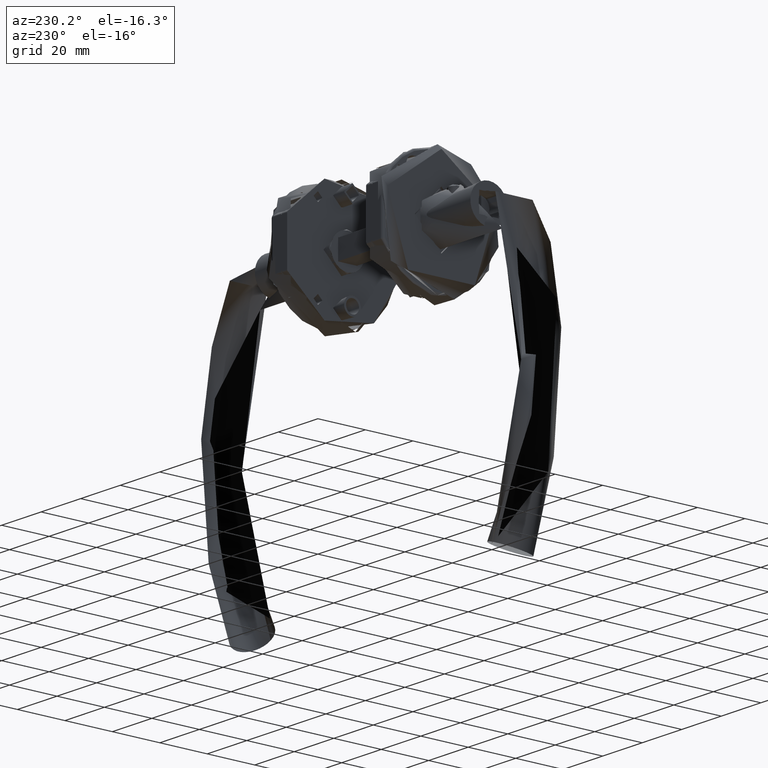
[diagram: clean part render]
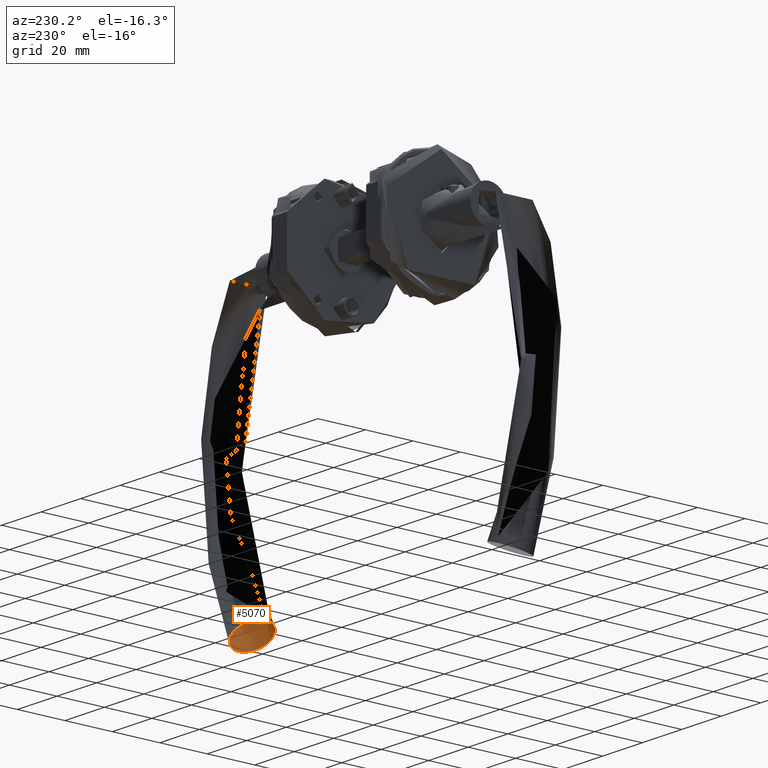
[diagram: same view with one face highlighted and labeled with its STEP entity id]
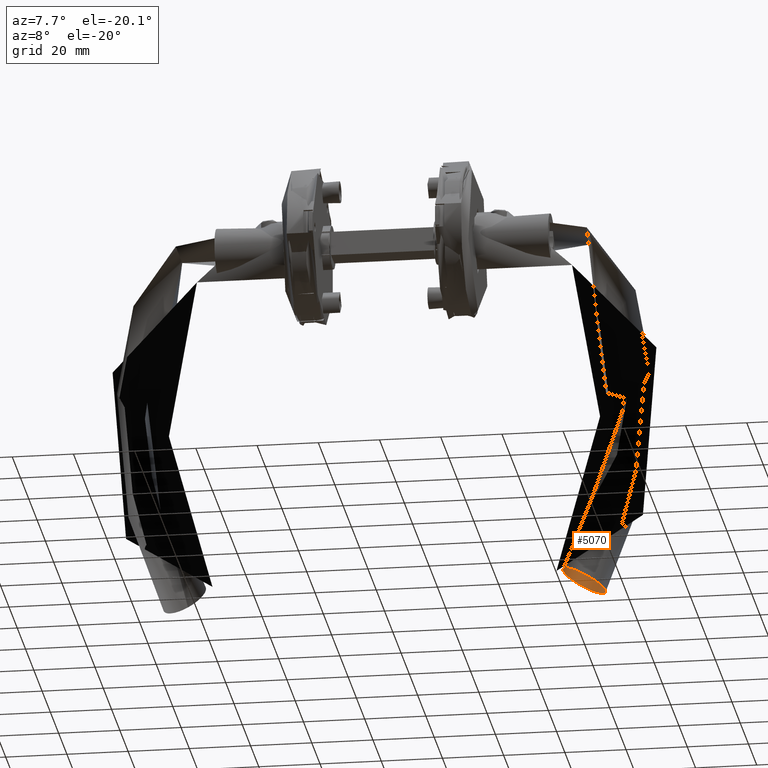
[diagram: same view with one face highlighted and labeled with its STEP entity id]
A machine part, auxiliary view. The second image highlights one B-rep face of the part: STEP entity #5070.
A second angle (auxiliary view) of the same face is appended — the face is thin or edge-on in the first view.
In plain terms, the highlighted planar face has unit normal (0.4737, 0, 0.8807).
Its self-contained STEP definition (entity closure, byte-faithful):
#461 = CARTESIAN_POINT ( 'NONE',  ( -130.0246887700677700, 7.297930048565334900, 37.86594364011880000 ) ) ;
#862 = CARTESIAN_POINT ( 'NONE',  ( -132.0623440172005600, 3.084938183703064500, 41.65469499233080300 ) ) ;
#1300 = DIRECTION ( 'NONE',  ( 0.8807079098085771600, -1.093418151136689100E-015, 0.4736597698777121300 ) ) ;
#1495 = CARTESIAN_POINT ( 'NONE',  ( -125.5883039851745100, 4.510235785702292300, 29.61707088485236400 ) ) ;
#1585 = CARTESIAN_POINT ( 'NONE',  ( -125.0942071126809300, 2.454644532618516000, 28.69836287650899800 ) ) ;
#1739 = CARTESIAN_POINT ( 'NONE',  ( -126.8040665639898200, -6.850664302222550200, 31.87762115258648500 ) ) ;
#1825 = CARTESIAN_POINT ( 'NONE',  ( -127.1698994814527700, 7.234890339400904800, 32.55783924280164100 ) ) ;
#1841 = CARTESIAN_POINT ( 'NONE',  ( -132.3443841228504400, 0.5933176723340914900, 42.17911139356611700 ) ) ;
#2183 = CARTESIAN_POINT ( 'NONE',  ( -132.3331774138516700, 0.8485868159676432900, 42.15827399531990900 ) ) ;
#2503 = CARTESIAN_POINT ( 'NONE',  ( -131.5346529922304100, -4.921843900484168100, 40.67352308544475600 ) ) ;
#3462 = CARTESIAN_POINT ( 'NONE',  ( -130.0955699540232600, -7.237892643067547200, 37.99773785895689600 ) ) ;
#3543 = CARTESIAN_POINT ( 'NONE',  ( -124.9783774206453400, 1.449396154831457600, 28.48299283148122600 ) ) ;
#4402 = CARTESIAN_POINT ( 'NONE',  ( -131.8806099050049500, -3.865394331767283200, 41.31678436476381900 ) ) ;
#4465 = CARTESIAN_POINT ( 'NONE',  ( -133.2826195758731600, 1.165569157455939700E-014, 43.92363655126159500 ) ) ;
#4883 = DIRECTION ( 'NONE',  ( 0.4736597698777121300, -5.258679823569121700E-017, -0.8807079098085771600 ) ) ;
#5070 = ADVANCED_FACE ( 'NONE', ( #11011 ), #12618, .T. ) ;
#5109 = ORIENTED_EDGE ( 'NONE', *, *, #16570, .T. ) ;
#5420 = CARTESIAN_POINT ( 'NONE',  ( -124.9150220558793100, -0.07890433624342078900, 28.36519188146026600 ) ) ;
#5504 = CARTESIAN_POINT ( 'NONE',  ( -125.2071634684188700, -3.081014128194858900, 28.90839033142072300 ) ) ;
#5582 = CARTESIAN_POINT ( 'NONE',  ( -125.9710164160086700, 5.503079781527670600, 30.32867420532158000 ) ) ;
#5659 = CARTESIAN_POINT ( 'NONE',  ( -126.0326988003370700, -5.610909122503995800, 30.44336446873153100 ) ) ;
#6016 = CARTESIAN_POINT ( 'NONE',  ( -132.3540940223065800, -0.1818208222135386200, 42.19716567175954200 ) ) ;
#6819 = CARTESIAN_POINT ( 'NONE',  ( -130.4623218430293700, 6.854276195314238200, 38.67966465562878400 ) ) ;
#7366 = CARTESIAN_POINT ( 'NONE',  ( -125.3117012130159700, -3.554901933649961400, 29.10276448855893200 ) ) ;
#7447 = CARTESIAN_POINT ( 'NONE',  ( -125.0029413110930700, 1.703408910066885200, 28.52866614804465700 ) ) ;
#7530 = CARTESIAN_POINT ( 'NONE',  ( -125.3345864909430700, 3.627700654675611900, 29.14531664639517000 ) ) ;
#7607 = CARTESIAN_POINT ( 'NONE',  ( -127.9454349206428100, -7.717706679561534800, 33.99984516998397100 ) ) ;
#7686 = CARTESIAN_POINT ( 'NONE',  ( -128.9161136623360200, -7.844504337756713900, 35.80469434666842000 ) ) ;
#7908 = B_SPLINE_CURVE_WITH_KNOTS ( 'NONE', 3,
 ( #25127, #13838, #15706, #2183, #1841, #21656, #6016, #7957, #9993, #13507, #15448, #4402, #21974, #2503, #15947, #10322, #12287, #10408, #11957, #13920, #18840, #3462, #9317, #17053, #7686, #9405, #25107, #21304, #7607, #25024, #19254, #13404, #1739, #22919, #9639, #11280, #5659, #11193, #24778, #17214, #7366, #5504, #13154, #15343, #21220, #13316, #5420, #15430, #19006, #20972, #3543, #7447, #1585, #23085, #7530, #9559, #22998, #1495, #24949, #5582, #19175, #9484, #23173, #11531, #13486, #1825, #15683, #23592, #13897, #13563, #8187, #22034, #16089, #8350, #13977, #461, #6819, #16428, #20251, #24166, #10559, #8605, #20422, #18376, #12527, #862, #16685 ),
 .UNSPECIFIED., .T., .F.,
 ( 4, 2, 2, 2, 2, 2, 2, 2, 1, 2, 2, 2, 2, 2, 2, 2, 2, 2, 2, 2, 2, 2, 2, 2, 2, 2, 2, 2, 2, 2, 2, 2, 2, 2, 2, 2, 2, 2, 2, 2, 2, 2, 2, 4 ),
 ( 0.0000000000000000000, 0.001533722147472849200, 0.002300583221209272400, 0.003067444294945695800, 0.004601166442418542200, 0.006134888589891389000, 0.007668610737364235000, 0.008435471811100657100, 0.009202332884837079200, 0.009969193958573501300, 0.01073605503230992300, 0.01226977717978276600, 0.01380349932725561200, 0.01533722147472845400, 0.01610408254846485600, 0.01687094362220126200, 0.01840466576967410300, 0.01993838791714696400, 0.02070524899088338800, 0.02147211006461981200, 0.02300583221209267000, 0.02453955435956552100, 0.02607327650703837600, 0.02684013758077480000, 0.02760699865451122700, 0.02837385972824765100, 0.02914072080198407500, 0.03067444294945694000, 0.03144130402319336700, 0.03220816509692980100, 0.03374188724440263500, 0.03450874831813906300, 0.03527560939187548300, 0.03680933153934835100, 0.03834305368682121300, 0.03910991476055765400, 0.03987677583429409500, 0.04141049798176697800, 0.04294422012923986000, 0.04447794227671274200, 0.04524480335044919800, 0.04601166442418565300, 0.04754538657165857000, 0.04907910871913148000 ),
 .UNSPECIFIED. ) ;
#7957 = CARTESIAN_POINT ( 'NONE',  ( -132.3337481934644600, -0.9524228112968967700, 42.15933528477627600 ) ) ;
#8187 = CARTESIAN_POINT ( 'NONE',  ( -128.5934556549650000, 7.853762937999549700, 35.20475431095886200 ) ) ;
#8350 = CARTESIAN_POINT ( 'NONE',  ( -129.3216601084182900, 7.731370993902571000, 36.55875450877923800 ) ) ;
#8605 = CARTESIAN_POINT ( 'NONE',  ( -131.3222383994294900, 5.429374542300268800, 40.27856614813340000 ) ) ;
#9317 = CARTESIAN_POINT ( 'NONE',  ( -129.6379468857782600, -7.576890738268546400, 37.14684808206433800 ) ) ;
#9405 = CARTESIAN_POINT ( 'NONE',  ( -128.6741680609841600, -7.866414288344088800, 35.35482839138774800 ) ) ;
#9484 = CARTESIAN_POINT ( 'NONE',  ( -126.3384967355477500, 6.181445234801282500, 31.01195542255640100 ) ) ;
#9559 = CARTESIAN_POINT ( 'NONE',  ( -125.3924441098051800, 3.853557012867336400, 29.25289526255616200 ) ) ;
#9639 = CARTESIAN_POINT ( 'NONE',  ( -126.3058535640759500, -6.122650372613212400, 30.95125974784464200 ) ) ;
#9993 = CARTESIAN_POINT ( 'NONE',  ( -132.2966415642993400, -1.457686981235059700, 42.09034039880482700 ) ) ;
#10322 = CARTESIAN_POINT ( 'NONE',  ( -131.2912839408839400, -5.500164663239085700, 40.22101041252192700 ) ) ;
#10408 = CARTESIAN_POINT ( 'NONE',  ( -130.9303852351690400, -6.182029180731565700, 39.54996683868215300 ) ) ;
#10559 = CARTESIAN_POINT ( 'NONE',  ( -131.2369561619117100, 5.611536566224966500, 40.11999506837423000 ) ) ;
#11011 = FACE_OUTER_BOUND ( 'NONE', #23056, .T. ) ;
#11193 = CARTESIAN_POINT ( 'NONE',  ( -125.9460299446684400, -5.425675072246847600, 30.28221515528833800 ) ) ;
#11280 = CARTESIAN_POINT ( 'NONE',  ( -126.2124606859655400, -5.958962325447514800, 30.77760800095293100 ) ) ;
#11531 = CARTESIAN_POINT ( 'NONE',  ( -126.6372135707210600, 6.627570850784801200, 31.56738000420913100 ) ) ;
#11957 = CARTESIAN_POINT ( 'NONE',  ( -130.7341350732804400, -6.485470164129237600, 39.18506553004630200 ) ) ;
#12287 = CARTESIAN_POINT ( 'NONE',  ( -131.1186814394361900, -5.859715491846535500, 39.90007881151779400 ) ) ;
#12385 = CARTESIAN_POINT ( 'NONE',  ( -132.1436259214283700, 2.595551212081290700, 41.80582797961454800 ) ) ;
#12527 = CARTESIAN_POINT ( 'NONE',  ( -131.9591583976590000, 3.552412542679912500, 41.46283493351251100 ) ) ;
#12618 = PLANE ( 'NONE',  #16680 ) ;
#13154 = CARTESIAN_POINT ( 'NONE',  ( -125.0464334342264400, -2.114291784440089900, 28.60953401838917600 ) ) ;
#13170 = VERTEX_POINT ( 'NONE', #12385 ) ;
#13316 = CARTESIAN_POINT ( 'NONE',  ( -124.9255517483180000, -0.5925782493897516800, 28.38477045664933500 ) ) ;
#13404 = CARTESIAN_POINT ( 'NONE',  ( -127.2464527384831100, -7.299573483247026900, 32.70017993389656400 ) ) ;
#13486 = CARTESIAN_POINT ( 'NONE',  ( -126.9501298082889900, 7.018152609542061900, 32.14920650301600300 ) ) ;
#13507 = CARTESIAN_POINT ( 'NONE',  ( -132.1757548262172600, -2.451422578934789900, 41.86556744321426000 ) ) ;
#13563 = CARTESIAN_POINT ( 'NONE',  ( -128.3499399045704200, 7.831388953653625000, 34.75196887049205700 ) ) ;
#13838 = CARTESIAN_POINT ( 'NONE',  ( -132.2249078256561200, 2.106164240459534700, 41.95696096689827200 ) ) ;
#13897 = CARTESIAN_POINT ( 'NONE',  ( -128.2291265750270400, 7.807658593292290000, 34.52733240840295500 ) ) ;
#13920 = CARTESIAN_POINT ( 'NONE',  ( -130.6314663308515400, -6.628432567579285900, 38.99416653609009100 ) ) ;
#13977 = CARTESIAN_POINT ( 'NONE',  ( -129.7920091621903400, 7.476858603986665100, 37.43330657836915500 ) ) ;
#15343 = CARTESIAN_POINT ( 'NONE',  ( -124.9887454837470100, -1.617471576484839300, 28.50227087822228400 ) ) ;
#15430 = CARTESIAN_POINT ( 'NONE',  ( -124.9157425096891400, 0.1771306725112588300, 28.36653147035795900 ) ) ;
#15448 = CARTESIAN_POINT ( 'NONE',  ( -132.0908679228278400, -2.942391321195864300, 41.70773143515803100 ) ) ;
#15683 = CARTESIAN_POINT ( 'NONE',  ( -127.6325431430134200, 7.577988559925533000, 33.41806415120900200 ) ) ;
#15706 = CARTESIAN_POINT ( 'NONE',  ( -132.2820879956725300, 1.608117569556365200, 42.06327995622400100 ) ) ;
#15947 = CARTESIAN_POINT ( 'NONE',  ( -131.4559194022583900, -5.121710087834277800, 40.52712835263072600 ) ) ;
#16089 = CARTESIAN_POINT ( 'NONE',  ( -129.0822714033994000, 7.809605392735760700, 36.11364276520984600 ) ) ;
#16428 = CARTESIAN_POINT ( 'NONE',  ( -130.6694854080621200, 6.589158857544994400, 39.06485799893407300 ) ) ;
#16570 = EDGE_CURVE ( 'NONE', #13170, #13170, #7908, .T. ) ;
#16680 = AXIS2_PLACEMENT_3D ( 'NONE', #4465, #1300, #4883 ) ;
#16685 = CARTESIAN_POINT ( 'NONE',  ( -132.1436259214283400, 2.595551212081290200, 41.80582797961454100 ) ) ;
#17053 = CARTESIAN_POINT ( 'NONE',  ( -129.3975203876834400, -7.700701117625835800, 36.69980669906014700 ) ) ;
#17214 = CARTESIAN_POINT ( 'NONE',  ( -125.5590719929074800, -4.437490382933588300, 29.56271784825052900 ) ) ;
#18376 = CARTESIAN_POINT ( 'NONE',  ( -131.7091635091226700, 4.443704512253194000, 40.99800238967512900 ) ) ;
#18840 = CARTESIAN_POINT ( 'NONE',  ( -130.3154402270263600, -7.022437587032517700, 38.40655765088394000 ) ) ;
#19006 = CARTESIAN_POINT ( 'NONE',  ( -124.9289623632041200, 0.6876224734034486200, 28.39111204548301600 ) ) ;
#19175 = CARTESIAN_POINT ( 'NONE',  ( -126.2428743622616500, 6.017623036870619800, 30.83415822325097400 ) ) ;
#19254 = CARTESIAN_POINT ( 'NONE',  ( -127.4744973218421500, -7.474633524576177900, 33.12419877848866200 ) ) ;
#20251 = CARTESIAN_POINT ( 'NONE',  ( -130.9624529540423900, 6.125438894414259000, 39.60959253513613700 ) ) ;
#20422 = CARTESIAN_POINT ( 'NONE',  ( -131.5647420750380500, 4.858347502873454200, 40.72946976893559400 ) ) ;
#20972 = CARTESIAN_POINT ( 'NONE',  ( -124.9414610520956600, 0.9420793607802119300, 28.41435171004607700 ) ) ;
#21220 = CARTESIAN_POINT ( 'NONE',  ( -124.9369252882277600, -0.8516395510685547100, 28.40591805498492700 ) ) ;
#21304 = CARTESIAN_POINT ( 'NONE',  ( -128.1867975034271300, -7.796753154387714000, 34.44862707908469400 ) ) ;
#21656 = CARTESIAN_POINT ( 'NONE',  ( -132.3548844859504900, 0.07849905104494284100, 42.19863543471582500 ) ) ;
#21974 = CARTESIAN_POINT ( 'NONE',  ( -131.7548827505287400, -4.302786849781157700, 41.08301129289514400 ) ) ;
#22034 = CARTESIAN_POINT ( 'NONE',  ( -128.7167663111928000, 7.852252110275560200, 35.43403422284878000 ) ) ;
#22919 = CARTESIAN_POINT ( 'NONE',  ( -126.5963505377759300, -6.583339036512468200, 31.49140058053372100 ) ) ;
#22998 = CARTESIAN_POINT ( 'NONE',  ( -125.5193755942639100, 4.295230952159297300, 29.48890762728662600 ) ) ;
#23056 = EDGE_LOOP ( 'NONE', ( #5109 ) ) ;
#23085 = CARTESIAN_POINT ( 'NONE',  ( -125.1773688647772400, 2.935493304360205600, 28.85299119312455900 ) ) ;
#23173 = CARTESIAN_POINT ( 'NONE',  ( -126.5357182810999500, 6.486384562583921800, 31.37866289107833100 ) ) ;
#23592 = CARTESIAN_POINT ( 'NONE',  ( -127.8694667645459900, 7.699547329455303800, 33.85859239695395900 ) ) ;
#24166 = CARTESIAN_POINT ( 'NONE',  ( -131.0573299030613400, 5.959193872881587400, 39.78600371627010900 ) ) ;
#24778 = CARTESIAN_POINT ( 'NONE',  ( -125.7021035418320900, -4.850155017991026400, 29.82866616073348000 ) ) ;
#24949 = CARTESIAN_POINT ( 'NONE',  ( -125.8073875389680300, 5.126206605469609400, 30.02442787610522900 ) ) ;
#25024 = CARTESIAN_POINT ( 'NONE',  ( -127.8264550476744900, -7.665917391837823800, 33.77861777873173600 ) ) ;
#25107 = CARTESIAN_POINT ( 'NONE',  ( -128.3093758435504400, -7.823870886236441900, 34.67654534570412000 ) ) ;
#25127 = CARTESIAN_POINT ( 'NONE',  ( -132.1436259214283400, 2.595551212081290200, 41.80582797961454100 ) ) ;